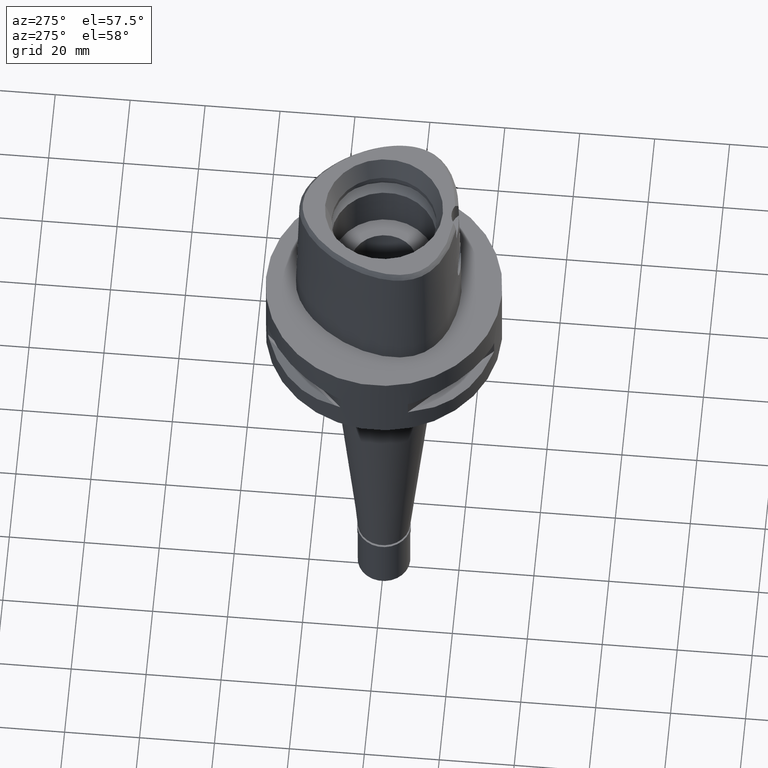
[diagram: clean part render]
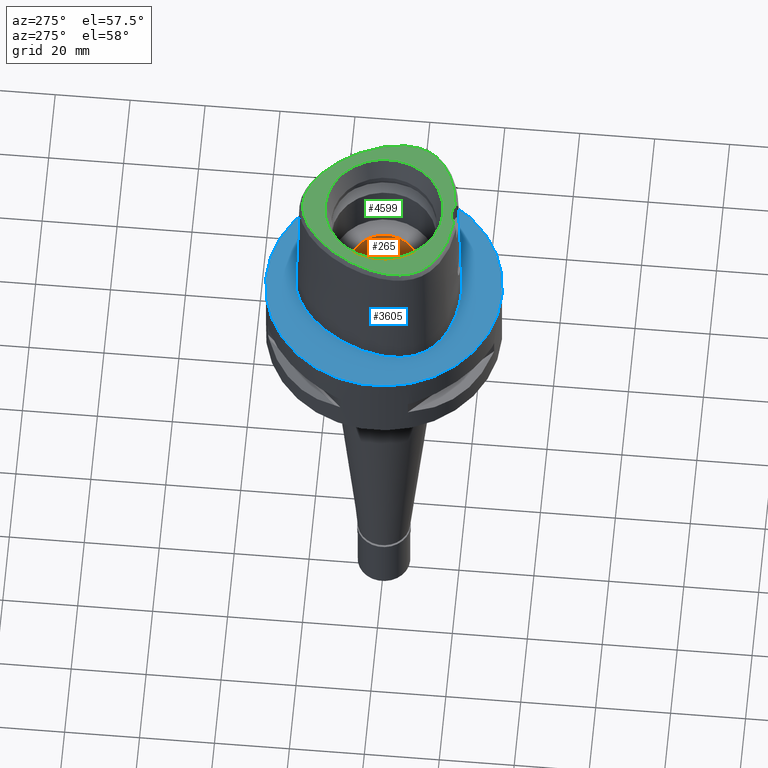
[diagram: same view with three faces highlighted in distinct colors, each labeled with its STEP entity id]
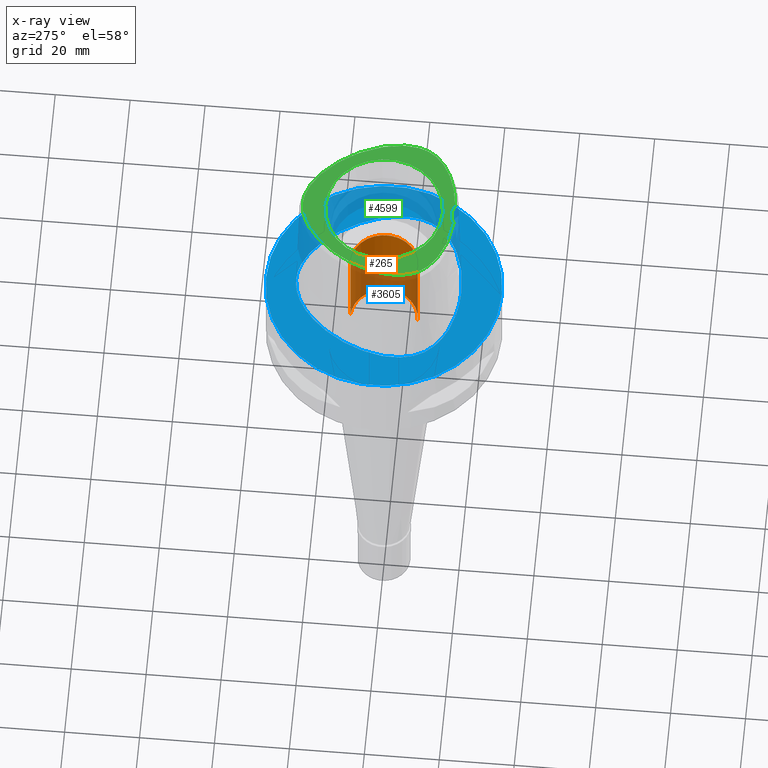
[diagram: x-ray of the same camera — body ghosted, the three highlighted faces saturated]
A machine part, auxiliary view with three faces highlighted in distinct colors.
The next image is the same camera in x-ray (body ghosted, the three faces saturated) — at least one of them is partly hidden behind the body in this view.
Their STEP definitions:

[orange] entity #265 — the highlighted cylindrical surface (edge-blend (fillet) strip) has radius 9 mm, axis along (0, 0, -1).
#176 = CIRCLE ( 'NONE', #321, 9.000000000000000000 ) ;
#244 = AXIS2_PLACEMENT_3D ( 'NONE', #407, #757, #3850 ) ;
#265 = ADVANCED_FACE ( 'NONE', ( #4059 ), #4490, .F. ) ;
#321 = AXIS2_PLACEMENT_3D ( 'NONE', #3540, #3874, #2028 ) ;
#335 = EDGE_LOOP ( 'NONE', ( #862, #594, #2203, #3529 ) ) ;
#407 = CARTESIAN_POINT ( 'NONE',  ( 0.0000000000000000000, 0.0000000000000000000, 11.00000000000000000 ) ) ;
#430 = VERTEX_POINT ( 'NONE', #2339 ) ;
#578 = EDGE_CURVE ( 'NONE', #3160, #1581, #3391, .T. ) ;
#594 = ORIENTED_EDGE ( 'NONE', *, *, #578, .F. ) ;
#757 = DIRECTION ( 'NONE',  ( 0.0000000000000000000, 0.0000000000000000000, 1.000000000000000000 ) ) ;
#862 = ORIENTED_EDGE ( 'NONE', *, *, #3456, .T. ) ;
#1098 = DIRECTION ( 'NONE',  ( 0.0000000000000000000, -1.000000000000000000, 0.0000000000000000000 ) ) ;
#1148 = AXIS2_PLACEMENT_3D ( 'NONE', #4825, #3025, #1098 ) ;
#1581 = VERTEX_POINT ( 'NONE', #3531 ) ;
#1634 = CARTESIAN_POINT ( 'NONE',  ( 0.0000000000000000000, -9.000000000000000000, 11.00000000000000000 ) ) ;
#1656 = DIRECTION ( 'NONE',  ( 0.0000000000000000000, 0.0000000000000000000, -1.000000000000000000 ) ) ;
#1920 = CIRCLE ( 'NONE', #244, 9.000000000000000000 ) ;
#2028 = DIRECTION ( 'NONE',  ( 0.0000000000000000000, 1.000000000000000000, 0.0000000000000000000 ) ) ;
#2203 = ORIENTED_EDGE ( 'NONE', *, *, #3748, .T. ) ;
#2230 = CARTESIAN_POINT ( 'NONE',  ( 0.0000000000000000000, 9.000000000000000000, -16.00000000000000000 ) ) ;
#2339 = CARTESIAN_POINT ( 'NONE',  ( 0.0000000000000000000, -9.000000000000000000, -16.00000000000000000 ) ) ;
#2826 = CARTESIAN_POINT ( 'NONE',  ( 0.0000000000000000000, 9.000000000000000000, -16.00000000000000000 ) ) ;
#2863 = LINE ( 'NONE', #1634, #3267 ) ;
#3025 = DIRECTION ( 'NONE',  ( 0.0000000000000000000, 0.0000000000000000000, -1.000000000000000000 ) ) ;
#3160 = VERTEX_POINT ( 'NONE', #2826 ) ;
#3267 = VECTOR ( 'NONE', #1656, 1000.000000000000000 ) ;
#3391 = LINE ( 'NONE', #2230, #3988 ) ;
#3456 = EDGE_CURVE ( 'NONE', #4597, #1581, #1920, .T. ) ;
#3529 = ORIENTED_EDGE ( 'NONE', *, *, #4716, .F. ) ;
#3531 = CARTESIAN_POINT ( 'NONE',  ( 0.0000000000000000000, 9.000000000000000000, 11.00000000000000000 ) ) ;
#3540 = CARTESIAN_POINT ( 'NONE',  ( 0.0000000000000000000, 0.0000000000000000000, -16.00000000000000000 ) ) ;
#3691 = DIRECTION ( 'NONE',  ( 0.0000000000000000000, 0.0000000000000000000, 1.000000000000000000 ) ) ;
#3748 = EDGE_CURVE ( 'NONE', #3160, #430, #176, .T. ) ;
#3850 = DIRECTION ( 'NONE',  ( 0.0000000000000000000, -1.000000000000000000, 0.0000000000000000000 ) ) ;
#3852 = CARTESIAN_POINT ( 'NONE',  ( 0.0000000000000000000, -9.000000000000000000, 11.00000000000000000 ) ) ;
#3874 = DIRECTION ( 'NONE',  ( 0.0000000000000000000, 0.0000000000000000000, -1.000000000000000000 ) ) ;
#3988 = VECTOR ( 'NONE', #3691, 1000.000000000000000 ) ;
#4059 = FACE_OUTER_BOUND ( 'NONE', #335, .T. ) ;
#4490 = CYLINDRICAL_SURFACE ( 'NONE', #1148, 9.000000000000000000 ) ;
#4597 = VERTEX_POINT ( 'NONE', #3852 ) ;
#4716 = EDGE_CURVE ( 'NONE', #4597, #430, #2863, .T. ) ;
#4825 = CARTESIAN_POINT ( 'NONE',  ( 0.0000000000000000000, 0.0000000000000000000, 39.89999999999999858 ) ) ;

[blue] entity #3605 — the highlighted planar face has unit normal (0, 0, -1).
#55 = FACE_OUTER_BOUND ( 'NONE', #2579, .T. ) ;
#59 = CARTESIAN_POINT ( 'NONE',  ( -18.56841064866222268, -14.16937988020231920, 1.516090832520342047E-07 ) ) ;
#85 = CARTESIAN_POINT ( 'NONE',  ( -10.74572890813996118, 19.17433593458577334, 1.516090832520342047E-07 ) ) ;
#132 = CARTESIAN_POINT ( 'NONE',  ( -19.64947365556884762, -12.82525390401577603, 1.516090832520342047E-07 ) ) ;
#139 = CARTESIAN_POINT ( 'NONE',  ( 20.93173256620589839, -10.60431642587527890, -1.927176603196134597E-06 ) ) ;
#167 = CARTESIAN_POINT ( 'NONE',  ( 21.97832652556841992, -0.2810937415710342280, -1.927176603196134597E-06 ) ) ;
#235 = CARTESIAN_POINT ( 'NONE',  ( 14.40795642659592346, 15.64093753126284270, -1.927176603196134597E-06 ) ) ;
#484 = CARTESIAN_POINT ( 'NONE',  ( -14.40795638667350254, 15.64093749753958029, 1.516090832520342047E-07 ) ) ;
#537 = CARTESIAN_POINT ( 'NONE',  ( -20.74942740520685547, 4.657187498707317630, 1.516090832520342047E-07 ) ) ;
#568 = CARTESIAN_POINT ( 'NONE',  ( 4.293582668174999870E-11, 23.47499999999000053, 9.107529545341999115E-14 ) ) ;
#593 = CARTESIAN_POINT ( 'NONE',  ( 2.564517736859126096, 23.29328129744406084, -1.927176603196134597E-06 ) ) ;
#839 = CARTESIAN_POINT ( 'NONE',  ( -21.55524825644420872, -8.996025389541506101, 1.516090832520342047E-07 ) ) ;
#918 = CARTESIAN_POINT ( 'NONE',  ( -2.113823672838555545, -20.67499999620940088, 1.516090832520342047E-07 ) ) ;
#949 = CARTESIAN_POINT ( 'NONE',  ( 7.571159458760028826, 21.31457035420509882, -1.927176603196134597E-06 ) ) ;
#1009 = CARTESIAN_POINT ( 'NONE',  ( -6.993981376961000509E-12, -20.67499999999999716, 9.396187531743999603E-14 ) ) ;
#1019 = CARTESIAN_POINT ( 'NONE',  ( 20.34961802736870951, -11.74885744600533855, -1.927176603196134597E-06 ) ) ;
#1104 = DIRECTION ( 'NONE',  ( 0.0000000000000000000, 1.000000000000000000, 0.0000000000000000000 ) ) ;
#1139 = CARTESIAN_POINT ( 'NONE',  ( 0.0000000000000000000, 1.224646799146999965E-14, 0.0000000000000000000 ) ) ;
#1215 = CARTESIAN_POINT ( 'NONE',  ( -22.05732873945438044, -6.847636718208110373, 1.516090832520342047E-07 ) ) ;
#1242 = CARTESIAN_POINT ( 'NONE',  ( -20.34961798227869778, -11.74885741997219490, 1.516090832520342047E-07 ) ) ;
#1265 = CARTESIAN_POINT ( 'NONE',  ( -7.571159432430608405, 21.31457030922217299, 1.516090832520342047E-07 ) ) ;
#1299 = CARTESIAN_POINT ( 'NONE',  ( 18.06826692719778649, 10.43171877421476523, -1.927176603196134597E-06 ) ) ;
#1345 = VERTEX_POINT ( 'NONE', #1516 ) ;
#1411 = CARTESIAN_POINT ( 'NONE',  ( 0.0000000000000000000, 1.304861164492000018E-14, 0.0000000000000000000 ) ) ;
#1436 = ORIENTED_EDGE ( 'NONE', *, *, #3268, .F. ) ;
#1516 = CARTESIAN_POINT ( 'NONE',  ( 0.0000000000000000000, -31.50000000000000000, 0.0000000000000000000 ) ) ;
#1534 = PLANE ( 'NONE',  #4685 ) ;
#1579 = EDGE_LOOP ( 'NONE', ( #1436, #4319 ) ) ;
#1580 = CARTESIAN_POINT ( 'NONE',  ( -6.341471018537943038, -20.29812499625711197, 1.516090832520342047E-07 ) ) ;
#1592 = CIRCLE ( 'NONE', #2785, 31.50000000000000000 ) ;
#1612 = CARTESIAN_POINT ( 'NONE',  ( -14.67337964231609782, -17.21410155919817697, 1.516090832520342047E-07 ) ) ;
#1658 = CARTESIAN_POINT ( 'NONE',  ( -16.95889172358566199, -15.67838866887873550, 1.516090832520342047E-07 ) ) ;
#1690 = DIRECTION ( 'NONE',  ( 0.0000000000000000000, -1.000000000000000000, 0.0000000000000000000 ) ) ;
#1702 = ORIENTED_EDGE ( 'NONE', *, *, #2925, .F. ) ;
#1704 = EDGE_CURVE ( 'NONE', #4062, #2257, #4835, .T. ) ;
#1875 = DIRECTION ( 'NONE',  ( 0.0000000000000000000, 0.0000000000000000000, -1.000000000000000000 ) ) ;
#2010 = CARTESIAN_POINT ( 'NONE',  ( -21.97832647411087947, -0.2810937506630972194, 1.516090832520342047E-07 ) ) ;
#2059 = CARTESIAN_POINT ( 'NONE',  ( 6.341471027772257685, -20.29812504768791825, -1.927176603196135020E-06 ) ) ;
#2090 = CARTESIAN_POINT ( 'NONE',  ( 22.24453912687402735, -4.100468749717050443, -1.927176603196134597E-06 ) ) ;
#2136 = CARTESIAN_POINT ( 'NONE',  ( -6.993981376961000509E-12, -20.67499999999999716, 9.396187531743999603E-14 ) ) ;
#2157 = CIRCLE ( 'NONE', #2708, 31.50000000000000000 ) ;
#2160 = CARTESIAN_POINT ( 'NONE',  ( 11.23259758383291995, -18.89324223302706329, -1.927176603196134597E-06 ) ) ;
#2257 = VERTEX_POINT ( 'NONE', #4875 ) ;
#2356 = CARTESIAN_POINT ( 'NONE',  ( -0.8548392420360610977, 23.47499999621386735, 1.516090832520342047E-07 ) ) ;
#2433 = EDGE_CURVE ( 'NONE', #1345, #3522, #1592, .T. ) ;
#2579 = EDGE_LOOP ( 'NONE', ( #1702, #3263 ) ) ;
#2700 = CARTESIAN_POINT ( 'NONE',  ( -11.23259756597050618, -18.89324218392132337, 1.516090832520342047E-07 ) ) ;
#2708 = AXIS2_PLACEMENT_3D ( 'NONE', #4113, #1875, #1104 ) ;
#2785 = AXIS2_PLACEMENT_3D ( 'NONE', #1411, #2917, #1690 ) ;
#2807 = CARTESIAN_POINT ( 'NONE',  ( 5.098437035267010309, 22.52602543554081649, -1.927176603196134597E-06 ) ) ;
#2900 = CARTESIAN_POINT ( 'NONE',  ( 18.56841068651300475, -14.16937991604999780, -1.927176603196134597E-06 ) ) ;
#2917 = DIRECTION ( 'NONE',  ( 0.0000000000000000000, 0.0000000000000000000, -1.000000000000000000 ) ) ;
#2925 = EDGE_CURVE ( 'NONE', #3522, #1345, #2157, .T. ) ;
#3069 = CARTESIAN_POINT ( 'NONE',  ( -18.06826688197366337, 10.43171874809906008, 1.516090832520342047E-07 ) ) ;
#3215 = CARTESIAN_POINT ( 'NONE',  ( 2.113823675931084445, -20.67500004816946557, -1.927176603196134597E-06 ) ) ;
#3263 = ORIENTED_EDGE ( 'NONE', *, *, #2433, .F. ) ;
#3268 = EDGE_CURVE ( 'NONE', #2257, #4062, #3358, .T. ) ;
#3358 = B_SPLINE_CURVE_WITH_KNOTS ( 'NONE', 3,
 ( #3466, #2356, #4232, #3523, #1265, #85, #484, #3069, #537, #2010, #4302, #1215, #839, #3907, #1242, #132, #59, #1658, #1612, #2700, #1580, #918, #4576 ),
 .UNSPECIFIED., .F., .F.,
 ( 4, 1, 1, 1, 1, 1, 1, 1, 1, 1, 1, 1, 1, 1, 1, 1, 1, 1, 1, 1, 4 ),
 ( 0.0000000000000000000, 0.04166666666733000179, 0.08333333333395000209, 0.1250000000005999923, 0.1666666666672000086, 0.2500000000004999889, 0.3333333333337000215, 0.4166666666670000296, 0.5000000000001999512, 0.5416666666668999985, 0.5833333333335000148, 0.6250000000001000311, 0.6458333333333999837, 0.6666666666667999674, 0.6875000000001000311, 0.7083333333333000637, 0.7500000000000000000, 0.7916666666667000474, 0.8333333333332000326, 0.9166666666666000163, 1.000000000000000000 ),
 .UNSPECIFIED. ) ;
#3466 = CARTESIAN_POINT ( 'NONE',  ( 4.293582668174999870E-11, 23.47499999999000053, 9.107529545341999115E-14 ) ) ;
#3484 = DIRECTION ( 'NONE',  ( 0.0000000000000000000, -1.000000000000000000, 0.0000000000000000000 ) ) ;
#3522 = VERTEX_POINT ( 'NONE', #4889 ) ;
#3523 = CARTESIAN_POINT ( 'NONE',  ( -5.098437015868814370, 22.52602538709230373, 1.516090832520342047E-07 ) ) ;
#3576 = CARTESIAN_POINT ( 'NONE',  ( 16.95889175584688857, -15.67838870991039890, -1.927176603196134597E-06 ) ) ;
#3602 = CARTESIAN_POINT ( 'NONE',  ( 21.55524830643922485, -8.996025404399054182, -1.927176603196134597E-06 ) ) ;
#3605 = ADVANCED_FACE ( 'NONE', ( #55, #4524 ), #1534, .F. ) ;
#3643 = CARTESIAN_POINT ( 'NONE',  ( 14.67337966811591876, -17.21410160449569204, -1.927176603196134597E-06 ) ) ;
#3907 = CARTESIAN_POINT ( 'NONE',  ( -20.93173251864306650, -10.60431640471491299, 1.516090832520342047E-07 ) ) ;
#3935 = CARTESIAN_POINT ( 'NONE',  ( 22.05732879111688760, -6.847636725632370691, -1.927176603196134597E-06 ) ) ;
#3987 = CARTESIAN_POINT ( 'NONE',  ( 10.74572894174404425, 19.17433597459553951, -1.927176603196134597E-06 ) ) ;
#4062 = VERTEX_POINT ( 'NONE', #1009 ) ;
#4113 = CARTESIAN_POINT ( 'NONE',  ( 0.0000000000000000000, 1.304861164492000018E-14, 0.0000000000000000000 ) ) ;
#4198 = DIRECTION ( 'NONE',  ( 0.0000000000000000000, 0.0000000000000000000, -1.000000000000000000 ) ) ;
#4232 = CARTESIAN_POINT ( 'NONE',  ( -2.564517726178084267, 23.29328124627052787, 1.516090832520342047E-07 ) ) ;
#4302 = CARTESIAN_POINT ( 'NONE',  ( -22.24453907474380898, -4.100468750021740938, 1.516090832520342047E-07 ) ) ;
#4309 = CARTESIAN_POINT ( 'NONE',  ( 0.8548392457222849794, 23.47500004818422426, -1.927176603196134597E-06 ) ) ;
#4319 = ORIENTED_EDGE ( 'NONE', *, *, #1704, .F. ) ;
#4382 = CARTESIAN_POINT ( 'NONE',  ( 20.74942745438055880, 4.657187516426478879, -1.927176603196134597E-06 ) ) ;
#4524 = FACE_BOUND ( 'NONE', #1579, .T. ) ;
#4576 = CARTESIAN_POINT ( 'NONE',  ( -6.993981376961000509E-12, -20.67499999999999716, 9.396187531743999603E-14 ) ) ;
#4685 = AXIS2_PLACEMENT_3D ( 'NONE', #1139, #4198, #3484 ) ;
#4703 = CARTESIAN_POINT ( 'NONE',  ( 19.64947369767518737, -12.82525393462650953, -1.927176603196134597E-06 ) ) ;
#4835 = B_SPLINE_CURVE_WITH_KNOTS ( 'NONE', 3,
 ( #2136, #3215, #2059, #2160, #3643, #3576, #2900, #4703, #1019, #139, #3602, #3935, #2090, #167, #4382, #1299, #235, #3987, #949, #2807, #593, #4309, #568 ),
 .UNSPECIFIED., .F., .F.,
 ( 4, 1, 1, 1, 1, 1, 1, 1, 1, 1, 1, 1, 1, 1, 1, 1, 1, 1, 1, 1, 4 ),
 ( 0.0000000000000000000, 0.08333333333339000559, 0.1666666666667000196, 0.2083333333333000081, 0.2500000000000000000, 0.2916666666666999919, 0.3125000000000000000, 0.3333333333332000326, 0.3541666666666000163, 0.3749999999998999689, 0.4166666666666000163, 0.4583333333332000326, 0.4999999999998999689, 0.5833333333331000015, 0.6666666666664999852, 0.7499999999998000488, 0.8333333333329999704, 0.8749999999997000177, 0.9166666666664000651, 0.9583333333329999704, 1.000000000000000000 ),
 .UNSPECIFIED. ) ;
#4875 = CARTESIAN_POINT ( 'NONE',  ( 4.293582668174999870E-11, 23.47499999999000053, 9.107529545341999115E-14 ) ) ;
#4889 = CARTESIAN_POINT ( 'NONE',  ( 0.0000000000000000000, 31.50000000000000000, 0.0000000000000000000 ) ) ;

[green] entity #4599 — the highlighted planar face has unit normal (0, 0, 1).
#23 = CARTESIAN_POINT ( 'NONE',  ( -3.475593359403999867E-11, 21.68728795390000030, 38.00000000000000000 ) ) ;
#46 = CARTESIAN_POINT ( 'NONE',  ( -1.323674540694585344, 21.61098849316031334, 37.99999999999833733 ) ) ;
#56 = CARTESIAN_POINT ( 'NONE',  ( 2.682287482605000051, -18.78036330228999873, 38.00000000000000000 ) ) ;
#82 = CARTESIAN_POINT ( 'NONE',  ( 20.27923816685443725, -6.179850483267947503, 38.00000000000328271 ) ) ;
#130 = DIRECTION ( 'NONE',  ( 0.0000000000000000000, 0.0000000000000000000, 1.000000000000000000 ) ) ;
#268 = CARTESIAN_POINT ( 'NONE',  ( -18.31748213707325590, -11.58791794387477658, 37.99999999999810285 ) ) ;
#345 = CARTESIAN_POINT ( 'NONE',  ( -0.2181979014509188297, 21.68728795389217012, 37.99999999999489120 ) ) ;
#361 = CARTESIAN_POINT ( 'NONE',  ( 16.88599964843003676, 8.518708218769992513, 37.99999999999738520 ) ) ;
#366 = ORIENTED_EDGE ( 'NONE', *, *, #1851, .F. ) ;
#384 = CARTESIAN_POINT ( 'NONE',  ( 11.32341394162881976, -16.80569392800623874, 37.99999999999602807 ) ) ;
#392 = CARTESIAN_POINT ( 'NONE',  ( -20.27898581532279110, -6.181921586190445517, 37.99999999999533173 ) ) ;
#409 = CARTESIAN_POINT ( 'NONE',  ( 14.21382211799260986, -15.34284287400733504, 37.99999999999457856 ) ) ;
#420 = CARTESIAN_POINT ( 'NONE',  ( -11.46564124494159742, 15.92741340513822657, 37.99999999999549516 ) ) ;
#433 = CARTESIAN_POINT ( 'NONE',  ( 7.606839420237555771, -18.00827588386222899, 37.99999999999744915 ) ) ;
#455 = CARTESIAN_POINT ( 'NONE',  ( 18.31883910942969251, -11.58595831187968983, 37.99999999999914024 ) ) ;
#598 = CARTESIAN_POINT ( 'NONE',  ( -6.188376196367052273, -18.31830638231710751, 37.99999999999663913 ) ) ;
#641 = CARTESIAN_POINT ( 'NONE',  ( -3.522896839654243273, -18.70811514173479395, 37.99999999999885603 ) ) ;
#663 = CARTESIAN_POINT ( 'NONE',  ( 12.44125753246712840, 14.89118158853516505, 37.99999999999743494 ) ) ;
#704 = CARTESIAN_POINT ( 'NONE',  ( 8.578848111817228173, 18.44609846599109559, 37.99999999999384670 ) ) ;
#759 = CARTESIAN_POINT ( 'NONE',  ( 19.98468477322798620, -7.807876343103582251, 37.99999999999970157 ) ) ;
#770 = CARTESIAN_POINT ( 'NONE',  ( -5.893543501601438805, 20.13235399352285526, 38.00000000000017764 ) ) ;
#783 = CARTESIAN_POINT ( 'NONE',  ( 19.54993126781862145, -9.226212439886381844, 37.99999999999513278 ) ) ;
#792 = CARTESIAN_POINT ( 'NONE',  ( -16.88647904405064892, 8.517821442302812684, 38.00000000000318323 ) ) ;
#810 = CARTESIAN_POINT ( 'NONE',  ( 6.196495988004282474, -18.31673538864752970, 38.00000000000312639 ) ) ;
#836 = CARTESIAN_POINT ( 'NONE',  ( 4.715576077242268127, -18.56597918135526371, 37.99999999999331379 ) ) ;
#860 = CARTESIAN_POINT ( 'NONE',  ( 17.45306278053484661, -12.68156296993645071, 37.99999999999704414 ) ) ;
#936 = VERTEX_POINT ( 'NONE', #2749 ) ;
#1022 = CARTESIAN_POINT ( 'NONE',  ( -18.99520880203987616, -10.46968343926279665, 38.00000000000301981 ) ) ;
#1047 = CARTESIAN_POINT ( 'NONE',  ( -4.706994425064536358, -18.56721852572736609, 38.00000000000120792 ) ) ;
#1099 = CARTESIAN_POINT ( 'NONE',  ( 2.682287482605000051, -18.78036330228999873, 38.00000000000000000 ) ) ;
#1123 = CARTESIAN_POINT ( 'NONE',  ( -7.655222869372459549, 19.09452359226613183, 37.99999999999207034 ) ) ;
#1141 = CARTESIAN_POINT ( 'NONE',  ( 19.64387775268194147, 1.522048414458246013, 37.99999999999137401 ) ) ;
#1166 = DIRECTION ( 'NONE',  ( 0.0000000000000000000, 0.0000000000000000000, 1.000000000000000000 ) ) ;
#1187 = CARTESIAN_POINT ( 'NONE',  ( 16.93855157777579734, -13.22377441789079278, 37.99999999999174349 ) ) ;
#1234 = EDGE_LOOP ( 'NONE', ( #1292, #4786, #1547 ) ) ;
#1249 = B_SPLINE_CURVE_WITH_KNOTS ( 'NONE', 3,
 ( #4457, #2895, #4846, #1805, #1461, #1392, #2967, #1433, #2154, #3669, #4424, #2598, #704, #4123, #1410, #1784, #663, #3287, #2183, #3689, #2723, #361, #3085, #2652, #1504, #3807, #1141, #3834, #3763, #1560, #2675, #3485, #4147, #82, #4250, #759, #1882, #783, #3114, #3015, #2282, #455, #1608, #860, #1187, #4625, #4526, #2306, #409, #3785, #3066, #384, #4553, #1535, #433, #810, #836, #4595, #1903, #56 ),
 .UNSPECIFIED., .F., .F.,
 ( 4, 1, 1, 1, 1, 1, 1, 1, 1, 1, 1, 1, 1, 1, 1, 1, 1, 1, 1, 1, 1, 1, 1, 1, 1, 1, 1, 1, 1, 1, 1, 1, 1, 1, 1, 1, 1, 1, 1, 1, 1, 1, 1, 1, 1, 1, 1, 1, 1, 1, 1, 1, 1, 1, 1, 1, 1, 4 ),
 ( 0.0000000000000000000, 0.01775854187129999318, 0.03551708374169992855, 0.05327562561200005486, 0.07103416748239999023, 0.08879270935270000553, 0.1065512512231000519, 0.1243097930933999562, 0.1420683349638000026, 0.1598268768341000179, 0.1775854187044000332, 0.1953439605747999686, 0.2131025024450999839, 0.2308610443155000302, 0.2486195861857999345, 0.2663781280563000120, 0.2841366699266000273, 0.3018952117970000737, 0.3196537536672999780, 0.3374122955377000244, 0.3551708374080000397, 0.3729293792782999439, 0.3906879211486999903, 0.4084464630190000056, 0.4262050048894000520, 0.4439635467596999563, 0.4617220886301000027, 0.4794806305004000180, 0.4972391723707999533, 0.5149977142410999686, 0.5327562561113999839, 0.5505147979818000303, 0.5682733398521000456, 0.5860318817224999810, 0.6037904235927999963, 0.6215489654632000427, 0.6393075073334999470, 0.6570660492038999934, 0.6748245910742000087, 0.6925831329445000240, 0.7103416748149000703, 0.7281002166851999746, 0.7458587585556000210, 0.7636173004259000363, 0.7813758422962999717, 0.7991343841665999870, 0.8168929260370000334, 0.8346514679073000487, 0.8524100097776999840, 0.8701685516479999993, 0.8879270935183000146, 0.9056856353886799660, 0.9234441772589799813, 0.9412027191293600437, 0.9589612609997000270, 0.9767198028700500023, 0.9944783447403919840, 1.000000000000000000 ),
 .UNSPECIFIED. ) ;
#1292 = ORIENTED_EDGE ( 'NONE', *, *, #4567, .F. ) ;
#1392 = CARTESIAN_POINT ( 'NONE',  ( 2.736932690727428508, 21.34527940057021667, 38.00000000000068923 ) ) ;
#1398 = CARTESIAN_POINT ( 'NONE',  ( -15.71788912669369331, -14.29843101566147467, 37.99999999999599254 ) ) ;
#1410 = CARTESIAN_POINT ( 'NONE',  ( 10.48999540691482935, 16.86597469869555610, 37.99999999999925393 ) ) ;
#1419 = CARTESIAN_POINT ( 'NONE',  ( -19.28591707036931169, -9.869682450886987368, 37.99999999999560174 ) ) ;
#1433 = CARTESIAN_POINT ( 'NONE',  ( 4.255661039972554072, 20.86618068829469408, 37.99999999999448619 ) ) ;
#1461 = CARTESIAN_POINT ( 'NONE',  ( 2.018320379028117451, 21.50256508436187630, 38.00000000000028422 ) ) ;
#1466 = DIRECTION ( 'NONE',  ( 0.0000000000000000000, 1.000000000000000000, 0.0000000000000000000 ) ) ;
#1492 = CARTESIAN_POINT ( 'NONE',  ( -18.79649882724643106, 4.256255933891953447, 37.99999999999410250 ) ) ;
#1504 = CARTESIAN_POINT ( 'NONE',  ( 18.79595068776025713, 4.257753965102887506, 37.99999999999953104 ) ) ;
#1515 = CARTESIAN_POINT ( 'NONE',  ( -19.26324493738842136, 2.868570891457038474, 38.00000000000102318 ) ) ;
#1532 = AXIS2_PLACEMENT_3D ( 'NONE', #3390, #1166, #4890 ) ;
#1535 = CARTESIAN_POINT ( 'NONE',  ( 8.936919536466925607, -17.64796721715790895, 37.99999999999563016 ) ) ;
#1547 = ORIENTED_EDGE ( 'NONE', *, *, #4769, .F. ) ;
#1560 = CARTESIAN_POINT ( 'NONE',  ( 20.30478359882067352, -2.175347700950319041, 37.99999999999499067 ) ) ;
#1566 = CARTESIAN_POINT ( 'NONE',  ( -0.6498990081535975794, 21.67378274708464403, 37.99999999999450040 ) ) ;
#1599 = EDGE_LOOP ( 'NONE', ( #4097, #366 ) ) ;
#1608 = CARTESIAN_POINT ( 'NONE',  ( 17.91165267839053143, -12.13575389397959015, 38.00000000000427747 ) ) ;
#1737 = VERTEX_POINT ( 'NONE', #2440 ) ;
#1742 = CARTESIAN_POINT ( 'NONE',  ( -14.21001600787376340, -15.34519100085905485, 38.00000000000090239 ) ) ;
#1784 = CARTESIAN_POINT ( 'NONE',  ( 11.46587147799772310, 15.92717600803255174, 37.99999999999687361 ) ) ;
#1792 = CARTESIAN_POINT ( 'NONE',  ( -11.31790883121217384, -16.80796958613547787, 37.99999999999720757 ) ) ;
#1805 = CARTESIAN_POINT ( 'NONE',  ( 1.325020189553045569, 21.61081414408952384, 37.99999999999667466 ) ) ;
#1842 = CARTESIAN_POINT ( 'NONE',  ( -20.40060226222781381, -4.311417605381427265, 38.00000000000061107 ) ) ;
#1851 = EDGE_CURVE ( 'NONE', #1737, #4505, #2068, .T. ) ;
#1882 = CARTESIAN_POINT ( 'NONE',  ( 19.78323211893085443, -8.541156231036845625, 37.99999999999361933 ) ) ;
#1890 = CARTESIAN_POINT ( 'NONE',  ( -19.78262210840223290, -8.543146992552809849, 38.00000000000120082 ) ) ;
#1903 = CARTESIAN_POINT ( 'NONE',  ( 2.845098933833312138, -18.76733062685856623, 37.99999999999663913 ) ) ;
#1913 = CARTESIAN_POINT ( 'NONE',  ( -18.24302769441048966, 5.671232572958858853, 37.99999999999342748 ) ) ;
#1941 = CARTESIAN_POINT ( 'NONE',  ( -2.017025177696693206, 21.50280829368162472, 37.99999999999408118 ) ) ;
#2068 = CIRCLE ( 'NONE', #3325, 15.71487483155999776 ) ;
#2117 = CARTESIAN_POINT ( 'NONE',  ( -10.17136073855280465, -17.24644253470108168, 38.00000000000086686 ) ) ;
#2154 = CARTESIAN_POINT ( 'NONE',  ( 5.059249257020968393, 20.53399274678797681, 37.99999999999769074 ) ) ;
#2165 = CARTESIAN_POINT ( 'NONE',  ( -17.45119705494507301, -12.68365517585277757, 37.99999999999951683 ) ) ;
#2183 = CARTESIAN_POINT ( 'NONE',  ( 14.34383722811526418, 12.54786717290888554, 37.99999999999867129 ) ) ;
#2214 = CARTESIAN_POINT ( 'NONE',  ( -5.058220461389621114, 20.53445508814690612, 37.99999999999690914 ) ) ;
#2262 = CARTESIAN_POINT ( 'NONE',  ( 0.0000000000000000000, 0.0000000000000000000, 38.00000000000000000 ) ) ;
#2282 = CARTESIAN_POINT ( 'NONE',  ( 18.67722910598090635, -11.03372143227724855, 37.99999999999855049 ) ) ;
#2291 = CARTESIAN_POINT ( 'NONE',  ( -3.481017203589042541, 21.13509756881572343, 37.99999999999246114 ) ) ;
#2306 = CARTESIAN_POINT ( 'NONE',  ( 15.00628712263210929, -14.82385870794805349, 37.99999999999180034 ) ) ;
#2440 = CARTESIAN_POINT ( 'NONE',  ( 0.0000000000000000000, 15.71487483155999776, 38.00000000000000000 ) ) ;
#2453 = DIRECTION ( 'NONE',  ( 0.0000000000000000000, -1.000000000000000000, 0.0000000000000000000 ) ) ;
#2488 = CIRCLE ( 'NONE', #2878, 15.71487483155999776 ) ;
#2598 = CARTESIAN_POINT ( 'NONE',  ( 7.655962789343819352, 19.09402979100171649, 37.99999999999973710 ) ) ;
#2608 = CARTESIAN_POINT ( 'NONE',  ( -20.38301517462631196, -3.278344853327839648, 38.00000000000011369 ) ) ;
#2634 = CARTESIAN_POINT ( 'NONE',  ( -16.09805956314152553, 9.908742513517299955, 38.00000000000083844 ) ) ;
#2652 = CARTESIAN_POINT ( 'NONE',  ( 18.24247239569972479, 5.672548708073199997, 38.00000000000012079 ) ) ;
#2675 = CARTESIAN_POINT ( 'NONE',  ( 20.38292172607581065, -3.276278498261751437, 37.99999999999879918 ) ) ;
#2683 = CARTESIAN_POINT ( 'NONE',  ( -20.30498420086573930, -2.177378896258224117, 38.00000000000191847 ) ) ;
#2723 = CARTESIAN_POINT ( 'NONE',  ( 16.09765529146562457, 9.909410920132271983, 37.99999999999424460 ) ) ;
#2748 = PLANE ( 'NONE',  #1532 ) ;
#2749 = CARTESIAN_POINT ( 'NONE',  ( -3.475593359403999867E-11, 21.68728795390000030, 38.00000000000000000 ) ) ;
#2852 = CARTESIAN_POINT ( 'NONE',  ( -7.599370508970547888, -18.01010694911709464, 38.00000000000083844 ) ) ;
#2878 = AXIS2_PLACEMENT_3D ( 'NONE', #3158, #130, #2453 ) ;
#2883 = CARTESIAN_POINT ( 'NONE',  ( -16.36032397154042783, -13.76458520345151015, 38.00000000000110134 ) ) ;
#2895 = CARTESIAN_POINT ( 'NONE',  ( 0.2185816947241200903, 21.68728795389687747, 38.00000000000019185 ) ) ;
#2903 = CARTESIAN_POINT ( 'NONE',  ( -18.67608643721647610, -11.03561202291119159, 37.99999999999606359 ) ) ;
#2948 = CARTESIAN_POINT ( 'NONE',  ( -19.54919922642261554, -9.228169790568621522, 38.00000000000019895 ) ) ;
#2951 = CARTESIAN_POINT ( 'NONE',  ( -13.33457781969909917, -15.85148397417931321, 37.99999999999912603 ) ) ;
#2964 = EDGE_CURVE ( 'NONE', #4765, #936, #3775, .T. ) ;
#2967 = CARTESIAN_POINT ( 'NONE',  ( 3.482188079160334127, 21.13472718027893649, 37.99999999999730704 ) ) ;
#2976 = CARTESIAN_POINT ( 'NONE',  ( -12.44116897271165989, 14.89128547409959680, 37.99999999999572253 ) ) ;
#3000 = CARTESIAN_POINT ( 'NONE',  ( -14.34402387965652181, 12.54761970512535818, 38.00000000000017053 ) ) ;
#3015 = CARTESIAN_POINT ( 'NONE',  ( 18.99619228226218226, -10.46780014453102403, 37.99999999999574385 ) ) ;
#3026 = CARTESIAN_POINT ( 'NONE',  ( -15.24692477332113860, 11.25717358966642578, 38.00000000000259348 ) ) ;
#3044 = FACE_OUTER_BOUND ( 'NONE', #1234, .T. ) ;
#3049 = VERTEX_POINT ( 'NONE', #1099 ) ;
#3053 = CARTESIAN_POINT ( 'NONE',  ( -20.16012968311559916, -1.009698174524094272, 38.00000000000250111 ) ) ;
#3066 = CARTESIAN_POINT ( 'NONE',  ( 12.37622418509631927, -16.33871033285931063, 37.99999999999787548 ) ) ;
#3074 = CARTESIAN_POINT ( 'NONE',  ( -4.254559144978030005, 20.86660163697066039, 37.99999999999668177 ) ) ;
#3085 = CARTESIAN_POINT ( 'NONE',  ( 17.60373714028162340, 7.099883643193262373, 37.99999999999887734 ) ) ;
#3114 = CARTESIAN_POINT ( 'NONE',  ( 19.28677546796776454, -9.867757137505890341, 37.99999999999817391 ) ) ;
#3158 = CARTESIAN_POINT ( 'NONE',  ( 0.0000000000000000000, 0.0000000000000000000, 38.00000000000000000 ) ) ;
#3272 = CARTESIAN_POINT ( 'NONE',  ( -2.682279906006999948, -18.78035848609999903, 38.00000000000000000 ) ) ;
#3287 = CARTESIAN_POINT ( 'NONE',  ( 13.40430406168780486, 13.76274261013417011, 37.99999999999921840 ) ) ;
#3325 = AXIS2_PLACEMENT_3D ( 'NONE', #2262, #4056, #1466 ) ;
#3334 = CARTESIAN_POINT ( 'NONE',  ( 0.0000000000000000000, -15.71487483155999776, 38.00000000000000000 ) ) ;
#3377 = CARTESIAN_POINT ( 'NONE',  ( -6.759433772718703715, 19.65454812512761862, 37.99999999999362643 ) ) ;
#3390 = CARTESIAN_POINT ( 'NONE',  ( 0.0000000000000000000, 0.0000000000000000000, 38.00000000000000000 ) ) ;
#3421 = CARTESIAN_POINT ( 'NONE',  ( -17.60426951087297809, 7.098774535281852316, 37.99999999999238298 ) ) ;
#3449 = CARTESIAN_POINT ( 'NONE',  ( -19.64434054693264642, 1.520253387636229192, 37.99999999999611333 ) ) ;
#3485 = CARTESIAN_POINT ( 'NONE',  ( 20.40062138794524316, -4.309334958867204080, 38.00000000000243716 ) ) ;
#3567 = CARTESIAN_POINT ( 'NONE',  ( -2.682279906006999948, -18.78035848609999903, 38.00000000000000000 ) ) ;
#3616 = CARTESIAN_POINT ( 'NONE',  ( 0.0000000000000000000, -23.00000000000000000, 38.00000000000000000 ) ) ;
#3626 = CARTESIAN_POINT ( 'NONE',  ( -12.37132652997622806, -16.34104299088516754, 37.99999999999472067 ) ) ;
#3669 = CARTESIAN_POINT ( 'NONE',  ( 5.894487344450129562, 20.13186406532399175, 37.99999999999111111 ) ) ;
#3677 = CARTESIAN_POINT ( 'NONE',  ( -8.930096025510973590, -17.65000298921323107, 37.99999999999843681 ) ) ;
#3689 = CARTESIAN_POINT ( 'NONE',  ( 15.24661770199304023, 11.25762885478260422, 37.99999999999239009 ) ) ;
#3763 = CARTESIAN_POINT ( 'NONE',  ( 20.15982952132194939, -1.007721426051392033, 37.99999999999855049 ) ) ;
#3775 = B_SPLINE_CURVE_WITH_KNOTS ( 'NONE', 3,
 ( #3272, #4434, #641, #1047, #598, #2852, #3677, #2117, #1792, #3626, #2951, #1742, #4756, #1398, #2883, #4387, #2165, #4784, #268, #2903, #1022, #1419, #2948, #1890, #4184, #4107, #392, #4135, #1842, #2608, #2683, #3053, #4877, #3449, #1515, #1492, #1913, #3421, #792, #2634, #3026, #3000, #3819, #2976, #420, #4582, #4491, #4083, #1123, #3377, #770, #2214, #3074, #2291, #3794, #1941, #46, #1566, #345, #23 ),
 .UNSPECIFIED., .F., .F.,
 ( 4, 1, 1, 1, 1, 1, 1, 1, 1, 1, 1, 1, 1, 1, 1, 1, 1, 1, 1, 1, 1, 1, 1, 1, 1, 1, 1, 1, 1, 1, 1, 1, 1, 1, 1, 1, 1, 1, 1, 1, 1, 1, 1, 1, 1, 1, 1, 1, 1, 1, 1, 1, 1, 1, 1, 1, 1, 4 ),
 ( 0.0000000000000000000, 0.005420919554200098744, 0.02318126027639999531, 0.04094160099879995407, 0.05870194172099996166, 0.07646228244330000035, 0.09422262316550000794, 0.1119829638877999356, 0.1297433046099999432, 0.1475036453321999508, 0.1652639860544999895, 0.1830243267768000281, 0.2007846674991000668, 0.2185450082212999634, 0.2363053489436000021, 0.2540656896658000097, 0.2718260303881000484, 0.2895863711103000560, 0.3073467118325999836, 0.3251070525547999912, 0.3428673932771000299, 0.3606277339994000686, 0.3783880747216000762, 0.3961484154438998928, 0.4139087561661000114, 0.4316690968884000501, 0.4494294376106000577, 0.4671897783328999854, 0.4849501190552000240, 0.5027104597774000316, 0.5204708004996999593, 0.5382311412219000779, 0.5559914819442000056, 0.5737518226664000132, 0.5915121633886999408, 0.6092725041108999484, 0.6270328448331999871, 0.6447931855555000258, 0.6625535262777000334, 0.6803138669999999610, 0.6980742077221999686, 0.7158345484445000073, 0.7335948891667000149, 0.7513552298890000536, 0.7691155706112000612, 0.7868759113336000199, 0.8046362520558000275, 0.8223965927780999552, 0.8401569335002999628, 0.8579172742224999704, 0.8756776149448000091, 0.8934379556670000166, 0.9111982963893099363, 0.9289586371115600150, 0.9467189778338299666, 0.9644793185560800453, 0.9822396592783400049, 1.000000000000000000 ),
 .UNSPECIFIED. ) ;
#3785 = CARTESIAN_POINT ( 'NONE',  ( 13.33890749495606265, -15.84912955620098884, 37.99999999999283773 ) ) ;
#3794 = CARTESIAN_POINT ( 'NONE',  ( -2.735698246183588811, 21.34559102902581529, 37.99999999999852207 ) ) ;
#3807 = CARTESIAN_POINT ( 'NONE',  ( 19.26272899268374417, 2.870227893750010306, 37.99999999999843681 ) ) ;
#3819 = CARTESIAN_POINT ( 'NONE',  ( -13.40435640711728382, 13.76268382997144002, 37.99999999999671729 ) ) ;
#3834 = CARTESIAN_POINT ( 'NONE',  ( 19.94150023628272450, 0.2261566111945932656, 38.00000000000316902 ) ) ;
#3875 = DIRECTION ( 'NONE',  ( 0.0000000000000000000, 1.000000000000000000, 0.0000000000000000000 ) ) ;
#4056 = DIRECTION ( 'NONE',  ( 0.0000000000000000000, 0.0000000000000000000, 1.000000000000000000 ) ) ;
#4083 = CARTESIAN_POINT ( 'NONE',  ( -8.578220530113812359, 18.44656747109059225, 38.00000000000532197 ) ) ;
#4097 = ORIENTED_EDGE ( 'NONE', *, *, #4687, .F. ) ;
#4107 = CARTESIAN_POINT ( 'NONE',  ( -20.15090095364721279, -7.024227649787570193, 38.00000000000298428 ) ) ;
#4123 = CARTESIAN_POINT ( 'NONE',  ( 9.524842839488176338, 17.70516372194752108, 37.99999999999900524 ) ) ;
#4135 = CARTESIAN_POINT ( 'NONE',  ( -20.36398648679820056, -5.278470727085505132, 37.99999999999546674 ) ) ;
#4147 = CARTESIAN_POINT ( 'NONE',  ( 20.36412151361096079, -5.276385427453875288, 37.99999999999598543 ) ) ;
#4184 = CARTESIAN_POINT ( 'NONE',  ( -19.98419490692084466, -7.809898894996159413, 38.00000000000096634 ) ) ;
#4218 = AXIS2_PLACEMENT_3D ( 'NONE', #3616, #4273, #3875 ) ;
#4250 = CARTESIAN_POINT ( 'NONE',  ( 20.15127154947596466, -7.022178451341514638, 38.00000000000015632 ) ) ;
#4273 = DIRECTION ( 'NONE',  ( 0.0000000000000000000, 0.0000000000000000000, 1.000000000000000000 ) ) ;
#4297 = CIRCLE ( 'NONE', #4218, 5.000000000000000888 ) ;
#4387 = CARTESIAN_POINT ( 'NONE',  ( -16.93638123745624569, -13.22593246128545452, 37.99999999999456435 ) ) ;
#4424 = CARTESIAN_POINT ( 'NONE',  ( 6.760281394350853290, 19.65404668909849306, 37.99999999999063505 ) ) ;
#4434 = CARTESIAN_POINT ( 'NONE',  ( -2.841965291530787585, -18.76757795572069654, 38.00000000000123634 ) ) ;
#4457 = CARTESIAN_POINT ( 'NONE',  ( -3.475593359403999867E-11, 21.68728795390000030, 38.00000000000000000 ) ) ;
#4491 = CARTESIAN_POINT ( 'NONE',  ( -9.524337278002713347, 17.70558492630462410, 38.00000000000017764 ) ) ;
#4505 = VERTEX_POINT ( 'NONE', #3334 ) ;
#4526 = CARTESIAN_POINT ( 'NONE',  ( 15.72078707640604378, -14.29615620309414403, 38.00000000000274980 ) ) ;
#4553 = CARTESIAN_POINT ( 'NONE',  ( 10.17751632998517053, -17.24426134458432003, 37.99999999999498357 ) ) ;
#4567 = EDGE_CURVE ( 'NONE', #936, #3049, #1249, .T. ) ;
#4574 = FACE_BOUND ( 'NONE', #1599, .T. ) ;
#4582 = CARTESIAN_POINT ( 'NONE',  ( -10.48962422759726465, 16.86631853279105187, 38.00000000000291323 ) ) ;
#4595 = CARTESIAN_POINT ( 'NONE',  ( 3.529311563348237701, -18.70747079910175259, 37.99999999999504041 ) ) ;
#4599 = ADVANCED_FACE ( 'NONE', ( #3044, #4574 ), #2748, .T. ) ;
#4625 = CARTESIAN_POINT ( 'NONE',  ( 16.36283630828515001, -13.76236604534943631, 37.99999999999893419 ) ) ;
#4687 = EDGE_CURVE ( 'NONE', #4505, #1737, #2488, .T. ) ;
#4756 = CARTESIAN_POINT ( 'NONE',  ( -15.00295592774029174, -14.82617991125513335, 38.00000000000425615 ) ) ;
#4765 = VERTEX_POINT ( 'NONE', #3567 ) ;
#4769 = EDGE_CURVE ( 'NONE', #3049, #4765, #4297, .T. ) ;
#4784 = CARTESIAN_POINT ( 'NONE',  ( -17.91005512244120368, -12.13778127739464097, 37.99999999999835154 ) ) ;
#4786 = ORIENTED_EDGE ( 'NONE', *, *, #2964, .F. ) ;
#4846 = CARTESIAN_POINT ( 'NONE',  ( 0.6513209347955903894, 21.67370899611789170, 37.99999999999690914 ) ) ;
#4877 = CARTESIAN_POINT ( 'NONE',  ( -19.94188961899514467, 0.2242544969877899586, 38.00000000000494538 ) ) ;
#4890 = DIRECTION ( 'NONE',  ( 1.000000000000000000, 0.0000000000000000000, 0.0000000000000000000 ) ) ;